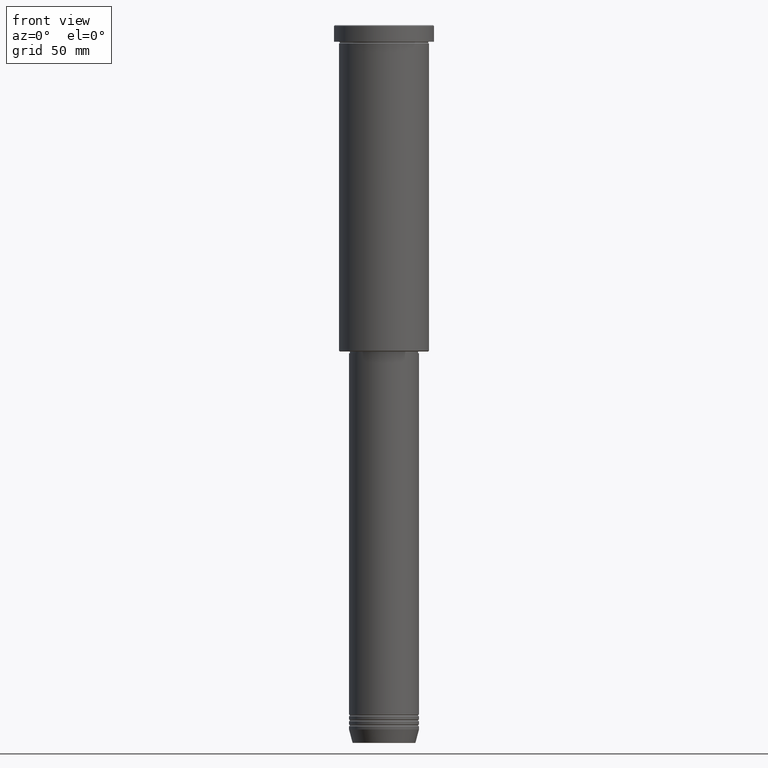
[diagram: clean part render]
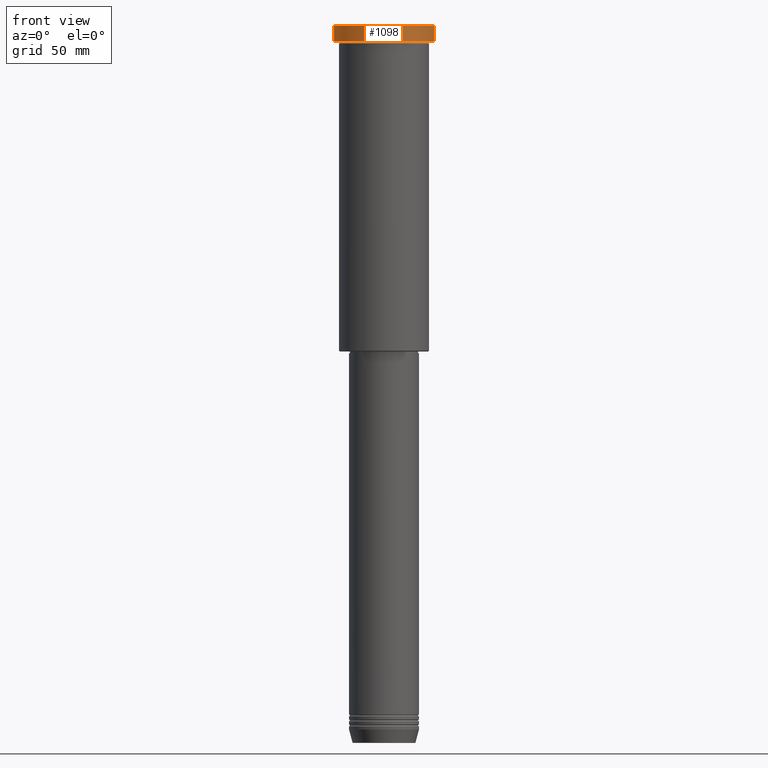
[diagram: same view with one face highlighted and labeled with its STEP entity id]
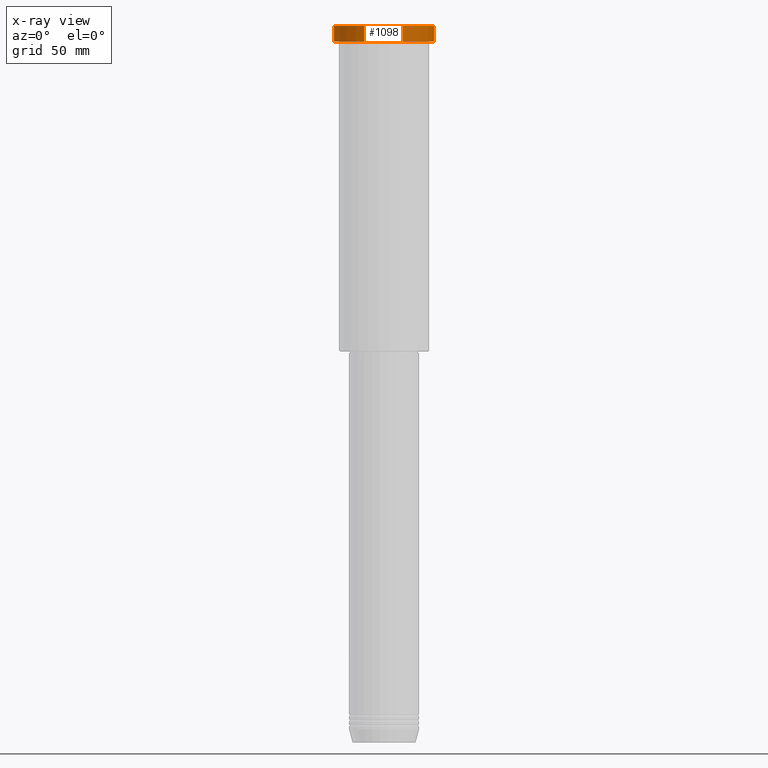
[diagram: x-ray of the same camera — body ghosted, the highlighted face saturated]
A machine part, front view. The second image highlights one B-rep face of the part: STEP entity #1098.
The next image is the same camera in x-ray: the body ghosted, the highlighted face saturated — about 0% of this face is hidden behind the body in this view.
In plain terms, the highlighted cylindrical surface (partial cylindrical patch) has radius 30 mm, axis along (-0, -0, 1).
Its self-contained STEP definition (entity closure, byte-faithful):
#22 = VECTOR ( 'NONE', #151, 1000.000000000000000 ) ;
#58 = CIRCLE ( 'NONE', #745, 30.00000000000000000 ) ;
#132 = CIRCLE ( 'NONE', #521, 30.00000000000000000 ) ;
#143 = CYLINDRICAL_SURFACE ( 'NONE', #986, 30.00000000000000000 ) ;
#151 = DIRECTION ( 'NONE',  ( -0.000000000000000000, -0.000000000000000000, 1.000000000000000000 ) ) ;
#156 = VECTOR ( 'NONE', #701, 1000.000000000000000 ) ;
#188 = DIRECTION ( 'NONE',  ( 1.000000000000000000, 0.000000000000000000, 0.000000000000000000 ) ) ;
#218 = DIRECTION ( 'NONE',  ( -0.000000000000000000, -0.000000000000000000, 1.000000000000000000 ) ) ;
#230 = EDGE_CURVE ( 'NONE', #477, #472, #58, .T. ) ;
#270 = ORIENTED_EDGE ( 'NONE', *, *, #741, .T. ) ;
#282 = EDGE_CURVE ( 'NONE', #477, #1114, #700, .T. ) ;
#315 = CARTESIAN_POINT ( 'NONE',  ( 30.00000000000000000, 0.000000000000000000, -9.999999999999992895 ) ) ;
#355 = DIRECTION ( 'NONE',  ( 1.000000000000000000, 0.000000000000000000, 0.000000000000000000 ) ) ;
#374 = DIRECTION ( 'NONE',  ( -0.000000000000000000, -0.000000000000000000, 1.000000000000000000 ) ) ;
#399 = CARTESIAN_POINT ( 'NONE',  ( 0.000000000000000000, 0.000000000000000000, 0.000000000000000000 ) ) ;
#433 = CARTESIAN_POINT ( 'NONE',  ( 30.00000000000000000, 0.000000000000000000, 0.000000000000000000 ) ) ;
#441 = VERTEX_POINT ( 'NONE', #1127 ) ;
#470 = CARTESIAN_POINT ( 'NONE',  ( 0.000000000000000000, 0.000000000000000000, -9.999999999999992895 ) ) ;
#472 = VERTEX_POINT ( 'NONE', #315 ) ;
#477 = VERTEX_POINT ( 'NONE', #488 ) ;
#488 = CARTESIAN_POINT ( 'NONE',  ( -30.00000000000000000, 3.673940397442059178E-15, -9.999999999999992895 ) ) ;
#521 = AXIS2_PLACEMENT_3D ( 'NONE', #708, #532, #355 ) ;
#532 = DIRECTION ( 'NONE',  ( 0.000000000000000000, 0.000000000000000000, -1.000000000000000000 ) ) ;
#576 = DIRECTION ( 'NONE',  ( 1.000000000000000000, 0.000000000000000000, 0.000000000000000000 ) ) ;
#644 = EDGE_CURVE ( 'NONE', #472, #441, #798, .T. ) ;
#694 = ORIENTED_EDGE ( 'NONE', *, *, #282, .F. ) ;
#700 = LINE ( 'NONE', #965, #22 ) ;
#701 = DIRECTION ( 'NONE',  ( -0.000000000000000000, -0.000000000000000000, 1.000000000000000000 ) ) ;
#708 = CARTESIAN_POINT ( 'NONE',  ( 0.000000000000000000, 0.000000000000000000, -0.5000000000000073275 ) ) ;
#741 = EDGE_CURVE ( 'NONE', #441, #1114, #132, .T. ) ;
#745 = AXIS2_PLACEMENT_3D ( 'NONE', #470, #374, #188 ) ;
#798 = LINE ( 'NONE', #433, #156 ) ;
#965 = CARTESIAN_POINT ( 'NONE',  ( -30.00000000000000000, 3.673940397442059178E-15, 0.000000000000000000 ) ) ;
#986 = AXIS2_PLACEMENT_3D ( 'NONE', #399, #218, #576 ) ;
#1014 = ORIENTED_EDGE ( 'NONE', *, *, #230, .T. ) ;
#1028 = FACE_OUTER_BOUND ( 'NONE', #1039, .T. ) ;
#1037 = CARTESIAN_POINT ( 'NONE',  ( -30.00000000000000000, 3.673940397442059178E-15, -0.5000000000000073275 ) ) ;
#1039 = EDGE_LOOP ( 'NONE', ( #694, #1014, #1096, #270 ) ) ;
#1096 = ORIENTED_EDGE ( 'NONE', *, *, #644, .T. ) ;
#1098 = ADVANCED_FACE ( 'NONE', ( #1028 ), #143, .T. ) ;
#1114 = VERTEX_POINT ( 'NONE', #1037 ) ;
#1127 = CARTESIAN_POINT ( 'NONE',  ( 30.00000000000000000, 0.000000000000000000, -0.5000000000000073275 ) ) ;